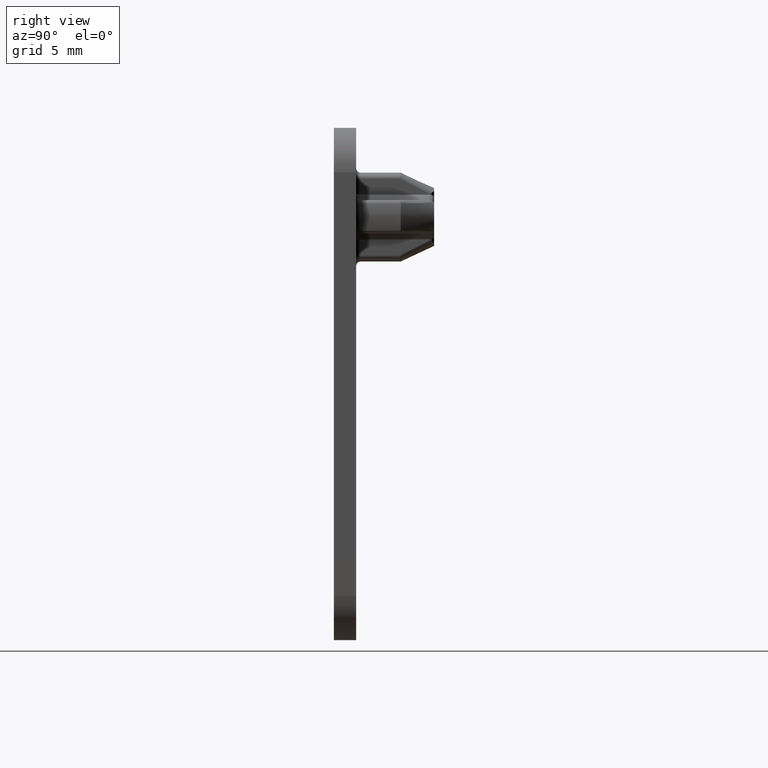
[diagram: clean part render]
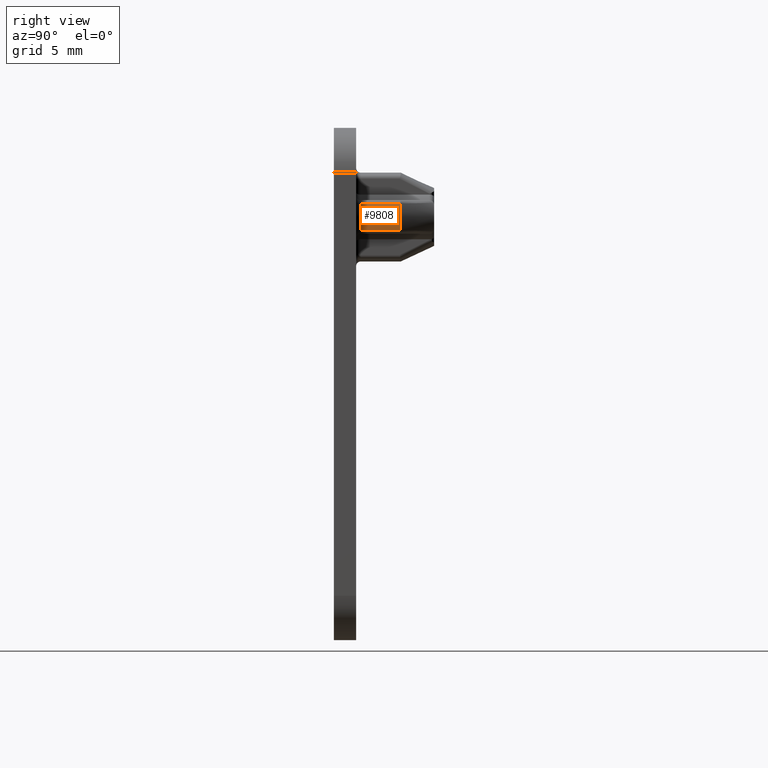
[diagram: same view with one face highlighted and labeled with its STEP entity id]
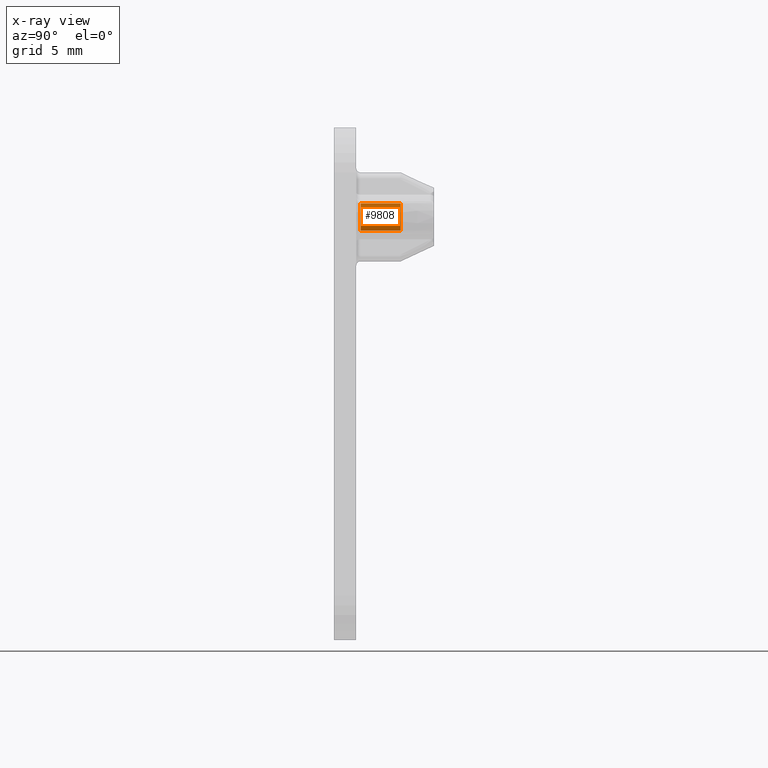
[diagram: x-ray of the same camera — body ghosted, the highlighted face saturated]
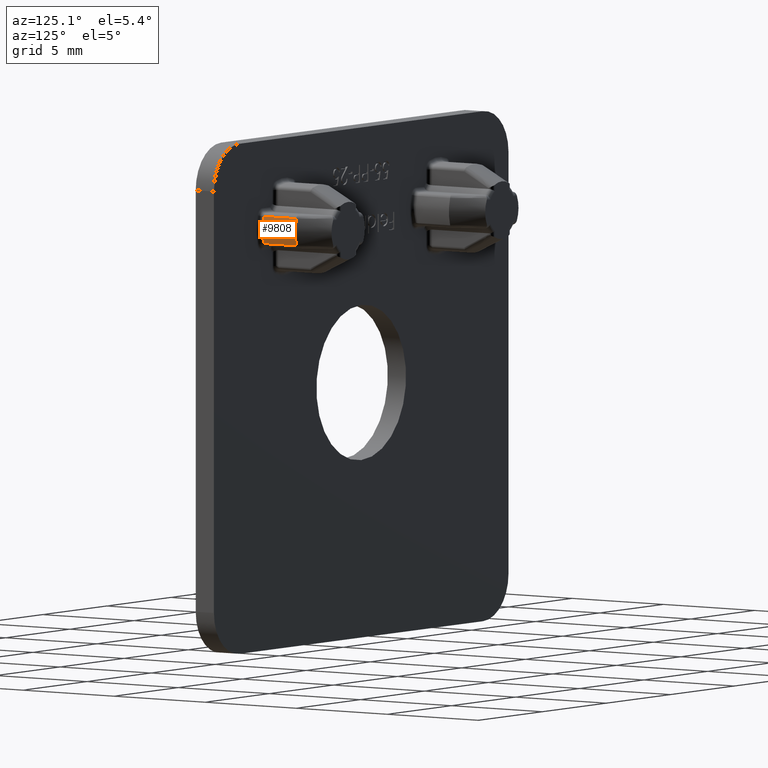
[diagram: same view with one face highlighted and labeled with its STEP entity id]
A machine part, right view. The second image highlights one B-rep face of the part: STEP entity #9808.
The next image is the same camera in x-ray: the body ghosted, the highlighted face saturated — about 0% of this face is hidden behind the body in this view.
A second angle (auxiliary view) of the same face is appended — the face is thin or edge-on in the first view.
In plain terms, the highlighted cylindrical surface (partial cylindrical patch) has radius 2 mm, axis along (-0, -1, -0).
Its self-contained STEP definition (entity closure, byte-faithful):
#75 = AXIS2_PLACEMENT_3D ( 'NONE', #2340, #6126, #994 ) ;
#182 = VERTEX_POINT ( 'NONE', #5485 ) ;
#584 = CARTESIAN_POINT ( 'NONE',  ( 7.904348500111405300, 2.999766929424868300, 6.888888888888887500 ) ) ;
#750 = CARTESIAN_POINT ( 'NONE',  ( 7.904348500111405300, 2.999766929424868300, 6.888888888888887500 ) ) ;
#968 = VERTEX_POINT ( 'NONE', #750 ) ;
#994 = DIRECTION ( 'NONE',  ( 1.734723475976804700E-015, 0.0000000000000000000, 1.000000000000000000 ) ) ;
#1447 = CARTESIAN_POINT ( 'NONE',  ( 7.904348500111405300, 1.200000000000000200, 8.111111111111110700 ) ) ;
#1743 = B_SPLINE_CURVE_WITH_KNOTS ( 'NONE', 3,
 ( #9809, #16218, #13707, #8702 ),
 .UNSPECIFIED., .F., .F.,
 ( 4, 4 ),
 ( 0.0000000000000000000, 6.621825019243060400E-006 ),
 .UNSPECIFIED. ) ;
#2340 = CARTESIAN_POINT ( 'NONE',  ( 6.000000000000002700, 2.999999999999987100, 7.500000000000000900 ) ) ;
#3029 = ORIENTED_EDGE ( 'NONE', *, *, #7956, .T. ) ;
#3081 = ORIENTED_EDGE ( 'NONE', *, *, #4611, .T. ) ;
#4102 = VECTOR ( 'NONE', #14473, 1000.000000000000000 ) ;
#4307 = CARTESIAN_POINT ( 'NONE',  ( 7.906360154133384600, 2.999999999999987100, 6.895193450157362000 ) ) ;
#4356 = CARTESIAN_POINT ( 'NONE',  ( 7.904348500111405300, 2.999766929424867900, 8.111111111111110700 ) ) ;
#4611 = EDGE_CURVE ( 'NONE', #182, #968, #4713, .T. ) ;
#4713 = LINE ( 'NONE', #5450, #4102 ) ;
#4877 = CARTESIAN_POINT ( 'NONE',  ( 7.906360154133384600, 2.999999999999987100, 6.895193450157362000 ) ) ;
#5450 = CARTESIAN_POINT ( 'NONE',  ( 7.904348500111405300, 4.500000000000000900, 6.888888888888887500 ) ) ;
#5485 = CARTESIAN_POINT ( 'NONE',  ( 7.904348500111405300, 1.200000000000000200, 6.888888888888887500 ) ) ;
#5818 = CARTESIAN_POINT ( 'NONE',  ( 7.906360154133394300, 2.999999999999987100, 8.104806549842608700 ) ) ;
#5845 = CIRCLE ( 'NONE', #14988, 2.000000000000002700 ) ;
#5890 = VERTEX_POINT ( 'NONE', #1447 ) ;
#6126 = DIRECTION ( 'NONE',  ( 0.0000000000000000000, -1.000000000000000000, 0.0000000000000000000 ) ) ;
#6261 = DIRECTION ( 'NONE',  ( -0.0000000000000000000, -1.000000000000000000, -0.0000000000000000000 ) ) ;
#6688 = ORIENTED_EDGE ( 'NONE', *, *, #10361, .T. ) ;
#6931 = VERTEX_POINT ( 'NONE', #4356 ) ;
#7956 = EDGE_CURVE ( 'NONE', #5890, #182, #5845, .T. ) ;
#8001 = EDGE_CURVE ( 'NONE', #15249, #16157, #8264, .T. ) ;
#8191 = CARTESIAN_POINT ( 'NONE',  ( 7.905692666942799800, 2.999999999999987100, 6.893089519596657900 ) ) ;
#8264 = CIRCLE ( 'NONE', #75, 2.000000000000002700 ) ;
#8308 = EDGE_CURVE ( 'NONE', #968, #15249, #14481, .T. ) ;
#8564 = CARTESIAN_POINT ( 'NONE',  ( 6.000000000000002700, 1.200000000000000200, 7.500000000000000900 ) ) ;
#8587 = EDGE_CURVE ( 'NONE', #6931, #5890, #10304, .T. ) ;
#8702 = CARTESIAN_POINT ( 'NONE',  ( 7.904348500111405300, 2.999766929424867900, 8.111111111111110700 ) ) ;
#9808 = ADVANCED_FACE ( 'NONE', ( #15872 ), #15451, .T. ) ;
#9809 = CARTESIAN_POINT ( 'NONE',  ( 7.906360154133394300, 2.999999999999987100, 8.104806549842608700 ) ) ;
#10166 = ORIENTED_EDGE ( 'NONE', *, *, #8001, .T. ) ;
#10304 = LINE ( 'NONE', #13965, #13504 ) ;
#10361 = EDGE_CURVE ( 'NONE', #16157, #6931, #1743, .T. ) ;
#11000 = AXIS2_PLACEMENT_3D ( 'NONE', #14191, #15465, #15250 ) ;
#12444 = DIRECTION ( 'NONE',  ( -5.204170427930414200E-015, 0.0000000000000000000, -1.000000000000000000 ) ) ;
#12611 = DIRECTION ( 'NONE',  ( -0.0000000000000000000, 1.000000000000000000, -0.0000000000000000000 ) ) ;
#13504 = VECTOR ( 'NONE', #6261, 1000.000000000000000 ) ;
#13681 = ORIENTED_EDGE ( 'NONE', *, *, #8587, .T. ) ;
#13707 = CARTESIAN_POINT ( 'NONE',  ( 7.905021261903418600, 2.999922782017637500, 8.109014646350024300 ) ) ;
#13965 = CARTESIAN_POINT ( 'NONE',  ( 7.904348500111405300, 4.500000000000000900, 8.111111111111110700 ) ) ;
#14191 = CARTESIAN_POINT ( 'NONE',  ( 6.000000000000002700, 4.500000000000000900, 7.500000000000000900 ) ) ;
#14473 = DIRECTION ( 'NONE',  ( 0.0000000000000000000, 1.000000000000000000, 0.0000000000000000000 ) ) ;
#14481 = B_SPLINE_CURVE_WITH_KNOTS ( 'NONE', 3,
 ( #584, #14572, #8191, #4307 ),
 .UNSPECIFIED., .F., .F.,
 ( 4, 4 ),
 ( 0.0000000000000000000, 6.621825019213984300E-006 ),
 .UNSPECIFIED. ) ;
#14572 = CARTESIAN_POINT ( 'NONE',  ( 7.905021261903417700, 2.999922782017637500, 6.890985353649968600 ) ) ;
#14988 = AXIS2_PLACEMENT_3D ( 'NONE', #8564, #12611, #12444 ) ;
#15249 = VERTEX_POINT ( 'NONE', #4877 ) ;
#15250 = DIRECTION ( 'NONE',  ( 0.0000000000000000000, 0.0000000000000000000, -1.000000000000000000 ) ) ;
#15451 = CYLINDRICAL_SURFACE ( 'NONE', #11000, 2.000000000000002700 ) ;
#15465 = DIRECTION ( 'NONE',  ( -0.0000000000000000000, -1.000000000000000000, -0.0000000000000000000 ) ) ;
#15872 = FACE_OUTER_BOUND ( 'NONE', #16249, .T. ) ;
#16042 = ORIENTED_EDGE ( 'NONE', *, *, #8308, .T. ) ;
#16157 = VERTEX_POINT ( 'NONE', #5818 ) ;
#16218 = CARTESIAN_POINT ( 'NONE',  ( 7.905692666942803400, 2.999999999999987100, 8.106910480403330500 ) ) ;
#16249 = EDGE_LOOP ( 'NONE', ( #3081, #16042, #10166, #6688, #13681, #3029 ) ) ;